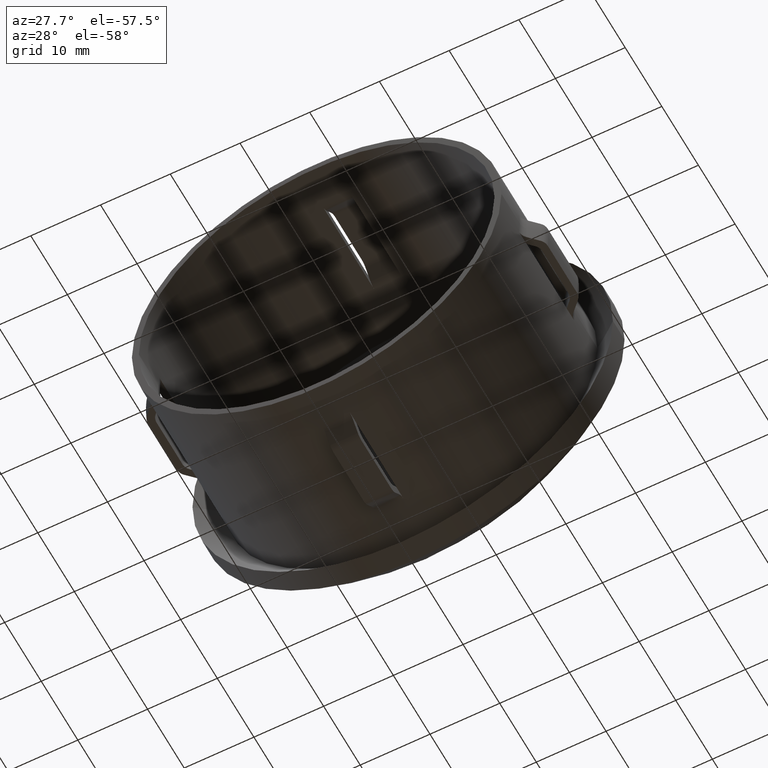
[diagram: clean part render]
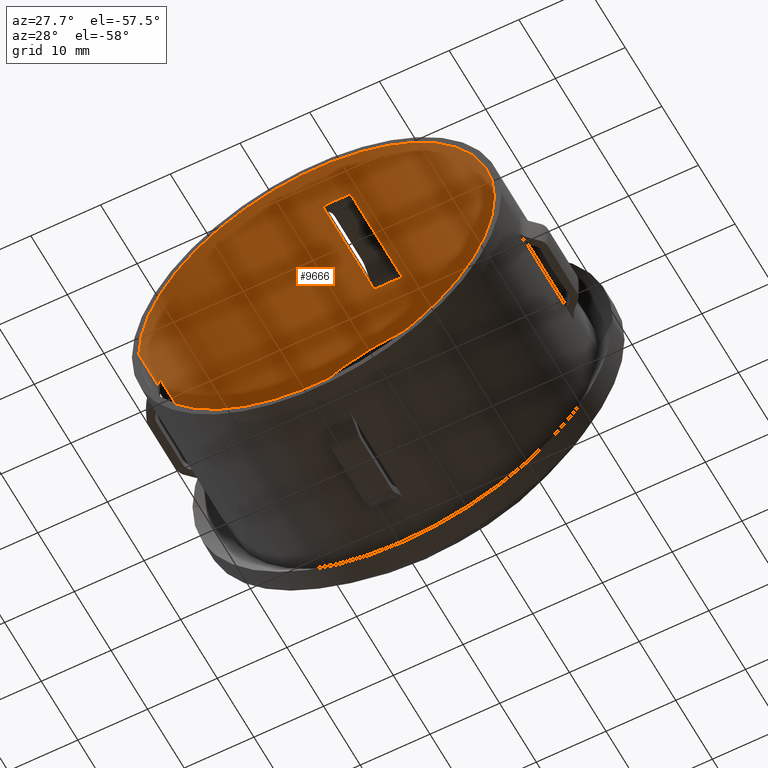
[diagram: same view with one face highlighted and labeled with its STEP entity id]
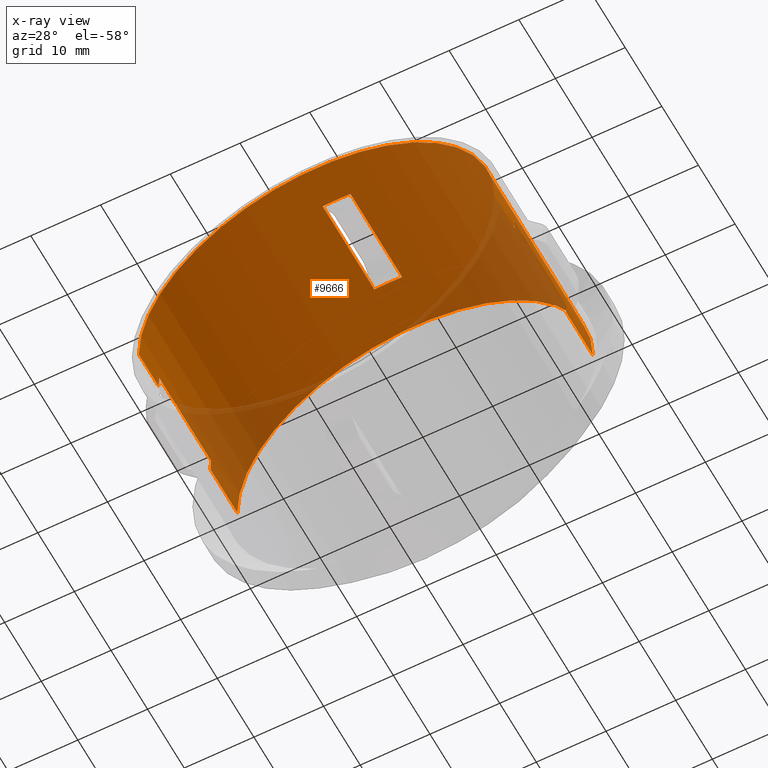
[diagram: x-ray of the same camera — body ghosted, the highlighted face saturated]
A machine part, auxiliary view. The second image highlights one B-rep face of the part: STEP entity #9666.
The next image is the same camera in x-ray: the body ghosted, the highlighted face saturated — about 18% of this face is hidden behind the body in this view.
In plain terms, the highlighted cylindrical surface (partial cylindrical patch) has radius 25.5 mm, axis along (-0, -1, -0).
Its self-contained STEP definition (entity closure, byte-faithful):
#73 = VECTOR ( 'NONE', #10206, 1000.000000000000000 ) ;
#126 = EDGE_CURVE ( 'NONE', #4200, #12732, #2209, .T. ) ;
#174 = ORIENTED_EDGE ( 'NONE', *, *, #1017, .F. ) ;
#220 = VERTEX_POINT ( 'NONE', #2466 ) ;
#235 = DIRECTION ( 'NONE',  ( 1.000000000000000000, -2.721134864277343100E-015, 0.0000000000000000000 ) ) ;
#266 = EDGE_CURVE ( 'NONE', #6447, #12217, #13176, .T. ) ;
#375 = ORIENTED_EDGE ( 'NONE', *, *, #4509, .T. ) ;
#384 = CARTESIAN_POINT ( 'NONE',  ( -25.50000000000014900, 5.428932188134656800, 3.122849337825761700E-015 ) ) ;
#503 = LINE ( 'NONE', #4053, #4245 ) ;
#538 = EDGE_CURVE ( 'NONE', #756, #660, #8624, .T. ) ;
#541 = AXIS2_PLACEMENT_3D ( 'NONE', #11102, #3246, #14513 ) ;
#619 = AXIS2_PLACEMENT_3D ( 'NONE', #2639, #7455, #9138 ) ;
#660 = VERTEX_POINT ( 'NONE', #14687 ) ;
#717 = DIRECTION ( 'NONE',  ( -2.449293598294745400E-017, -1.000000000000000000, 0.0000000000000000000 ) ) ;
#720 = CARTESIAN_POINT ( 'NONE',  ( 25.50000000000002500, 34.29999999999992600, 0.0000000000000000000 ) ) ;
#756 = VERTEX_POINT ( 'NONE', #2252 ) ;
#836 = ORIENTED_EDGE ( 'NONE', *, *, #3179, .F. ) ;
#1017 = EDGE_CURVE ( 'NONE', #5639, #11183, #11599, .T. ) ;
#1028 = CARTESIAN_POINT ( 'NONE',  ( -25.42144763777250600, 5.428932188134619500, 1.999999999999994400 ) ) ;
#1156 = VECTOR ( 'NONE', #717, 1000.000000000000000 ) ;
#1200 = AXIS2_PLACEMENT_3D ( 'NONE', #5533, #13419, #2187 ) ;
#1405 = DIRECTION ( 'NONE',  ( -2.699121545320764300E-015, -1.000000000000000000, -0.0000000000000000000 ) ) ;
#1541 = ORIENTED_EDGE ( 'NONE', *, *, #1866, .F. ) ;
#1866 = EDGE_CURVE ( 'NONE', #5497, #7422, #5760, .T. ) ;
#1919 = EDGE_CURVE ( 'NONE', #13942, #12732, #11411, .T. ) ;
#1998 = CARTESIAN_POINT ( 'NONE',  ( 25.42144763777231700, 5.428932188134520100, 1.999999999999997100 ) ) ;
#2046 = DIRECTION ( 'NONE',  ( -2.449293598294745400E-017, -1.000000000000000000, 0.0000000000000000000 ) ) ;
#2082 = VECTOR ( 'NONE', #12179, 1000.000000000000000 ) ;
#2107 = EDGE_CURVE ( 'NONE', #11183, #4200, #12972, .T. ) ;
#2187 = DIRECTION ( 'NONE',  ( 1.000000000000000000, -2.699121545320764300E-015, 0.0000000000000000000 ) ) ;
#2192 = EDGE_CURVE ( 'NONE', #220, #7157, #10171, .T. ) ;
#2209 = LINE ( 'NONE', #3289, #73 ) ;
#2252 = CARTESIAN_POINT ( 'NONE',  ( 2.000000000000003100, 19.58578643762694700, 25.42144763777240600 ) ) ;
#2401 = DIRECTION ( 'NONE',  ( -2.699121545320764300E-015, -1.000000000000000000, -0.0000000000000000000 ) ) ;
#2466 = CARTESIAN_POINT ( 'NONE',  ( 25.50000000000000000, 19.58578643762691500, 0.0000000000000000000 ) ) ;
#2509 = CIRCLE ( 'NONE', #541, 25.50000000000003600 ) ;
#2639 = CARTESIAN_POINT ( 'NONE',  ( -7.792652116742274300E-014, 5.428932188134588400, 0.0000000000000000000 ) ) ;
#2685 = CARTESIAN_POINT ( 'NONE',  ( -25.49999999999991100, 26.87492981902789400, 0.0000000000000000000 ) ) ;
#2941 = ORIENTED_EDGE ( 'NONE', *, *, #126, .F. ) ;
#3018 = DIRECTION ( 'NONE',  ( 1.000000000000000000, -2.687120678473870100E-015, 0.0000000000000000000 ) ) ;
#3056 = DIRECTION ( 'NONE',  ( -2.699121545320764300E-015, -1.000000000000000000, -0.0000000000000000000 ) ) ;
#3086 = ORIENTED_EDGE ( 'NONE', *, *, #266, .F. ) ;
#3179 = EDGE_CURVE ( 'NONE', #756, #9894, #13135, .T. ) ;
#3246 = DIRECTION ( 'NONE',  ( -2.699121545320764300E-015, -1.000000000000000000, -0.0000000000000000000 ) ) ;
#3289 = CARTESIAN_POINT ( 'NONE',  ( -25.50000000000002500, 34.30000000000006800, 3.122849337825753800E-015 ) ) ;
#3358 = CARTESIAN_POINT ( 'NONE',  ( 25.49999999999999600, 5.428932188134520100, 0.0000000000000000000 ) ) ;
#3564 = LINE ( 'NONE', #6753, #4081 ) ;
#3813 = CARTESIAN_POINT ( 'NONE',  ( 25.49999999999999600, 5.613396333925567000E-016, 0.0000000000000000000 ) ) ;
#3904 = CIRCLE ( 'NONE', #6348, 25.50000000000001400 ) ;
#4030 = CARTESIAN_POINT ( 'NONE',  ( -25.50000000000018100, 1.382165384447520000E-013, 3.122849337825765600E-015 ) ) ;
#4053 = CARTESIAN_POINT ( 'NONE',  ( 25.50000000000002500, 34.29999999999992600, 0.0000000000000000000 ) ) ;
#4081 = VECTOR ( 'NONE', #14657, 1000.000000000000000 ) ;
#4200 = VERTEX_POINT ( 'NONE', #384 ) ;
#4245 = VECTOR ( 'NONE', #3056, 1000.000000000000000 ) ;
#4409 = ORIENTED_EDGE ( 'NONE', *, *, #2192, .T. ) ;
#4500 = CARTESIAN_POINT ( 'NONE',  ( 2.000000000000003100, 20.00000000000000000, 25.42144763777240600 ) ) ;
#4509 = EDGE_CURVE ( 'NONE', #5639, #12217, #2509, .T. ) ;
#4531 = AXIS2_PLACEMENT_3D ( 'NONE', #14443, #13238, #6482 ) ;
#4623 = CIRCLE ( 'NONE', #7037, 25.50000000000007100 ) ;
#4783 = CARTESIAN_POINT ( 'NONE',  ( -7.792652116742274300E-014, 5.428932188134588400, 0.0000000000000000000 ) ) ;
#4881 = ORIENTED_EDGE ( 'NONE', *, *, #1919, .T. ) ;
#4925 = ORIENTED_EDGE ( 'NONE', *, *, #2107, .F. ) ;
#4969 = DIRECTION ( 'NONE',  ( -2.449293598294745400E-017, -1.000000000000000000, 0.0000000000000000000 ) ) ;
#5102 = ORIENTED_EDGE ( 'NONE', *, *, #7644, .T. ) ;
#5121 = CYLINDRICAL_SURFACE ( 'NONE', #11568, 25.50000000000002500 ) ;
#5497 = VERTEX_POINT ( 'NONE', #3358 ) ;
#5533 = CARTESIAN_POINT ( 'NONE',  ( -9.257986900450202300E-014, 6.938893903907228400E-014, 0.0000000000000000000 ) ) ;
#5639 = VERTEX_POINT ( 'NONE', #12826 ) ;
#5760 = CIRCLE ( 'NONE', #14362, 25.50000000000007100 ) ;
#5913 = VECTOR ( 'NONE', #2046, 1000.000000000000000 ) ;
#6230 = ORIENTED_EDGE ( 'NONE', *, *, #13108, .T. ) ;
#6348 = AXIS2_PLACEMENT_3D ( 'NONE', #10104, #2401, #235 ) ;
#6447 = VERTEX_POINT ( 'NONE', #2685 ) ;
#6482 = DIRECTION ( 'NONE',  ( 1.000000000000000000, -2.721134864277340700E-015, 0.0000000000000000000 ) ) ;
#6612 = DIRECTION ( 'NONE',  ( 1.000000000000000000, -2.721134864277340700E-015, 0.0000000000000000000 ) ) ;
#6641 = VECTOR ( 'NONE', #4969, 1000.000000000000000 ) ;
#6752 = ORIENTED_EDGE ( 'NONE', *, *, #8098, .F. ) ;
#6753 = CARTESIAN_POINT ( 'NONE',  ( 25.42144763777231700, 20.00000000000000000, 1.999999999999994400 ) ) ;
#7037 = AXIS2_PLACEMENT_3D ( 'NONE', #12871, #9588, #8551 ) ;
#7157 = VERTEX_POINT ( 'NONE', #12551 ) ;
#7422 = VERTEX_POINT ( 'NONE', #1998 ) ;
#7455 = DIRECTION ( 'NONE',  ( -2.699121545320764300E-015, -1.000000000000000000, -0.0000000000000000000 ) ) ;
#7462 = CARTESIAN_POINT ( 'NONE',  ( -25.42144763777250600, 20.00000000000000000, 1.999999999999994400 ) ) ;
#7591 = ORIENTED_EDGE ( 'NONE', *, *, #8774, .T. ) ;
#7637 = EDGE_LOOP ( 'NONE', ( #3086, #6752, #14101, #4409, #5102, #1541, #7591, #4881, #2941, #4925, #174, #375 ) ) ;
#7644 = EDGE_CURVE ( 'NONE', #7157, #7422, #3564, .T. ) ;
#7747 = AXIS2_PLACEMENT_3D ( 'NONE', #8305, #10218, #6612 ) ;
#8087 = CARTESIAN_POINT ( 'NONE',  ( -25.50000000000002500, 34.30000000000006800, 3.122849337825753800E-015 ) ) ;
#8098 = EDGE_CURVE ( 'NONE', #8659, #6447, #3904, .T. ) ;
#8139 = EDGE_CURVE ( 'NONE', #9894, #12085, #4623, .T. ) ;
#8305 = CARTESIAN_POINT ( 'NONE',  ( -3.971545084865199800E-014, 19.58578643762698600, 0.0000000000000000000 ) ) ;
#8551 = DIRECTION ( 'NONE',  ( 1.000000000000000000, -2.687120678473870100E-015, 0.0000000000000000000 ) ) ;
#8624 = CIRCLE ( 'NONE', #4531, 25.50000000000003600 ) ;
#8659 = VERTEX_POINT ( 'NONE', #14073 ) ;
#8690 = EDGE_CURVE ( 'NONE', #8659, #220, #503, .T. ) ;
#8774 = EDGE_CURVE ( 'NONE', #5497, #13942, #14678, .T. ) ;
#9010 = FACE_BOUND ( 'NONE', #12876, .T. ) ;
#9077 = CARTESIAN_POINT ( 'NONE',  ( 0.0000000000000000000, 34.29999999999999700, 0.0000000000000000000 ) ) ;
#9138 = DIRECTION ( 'NONE',  ( 1.000000000000000000, -2.687120678473870100E-015, 0.0000000000000000000 ) ) ;
#9183 = DIRECTION ( 'NONE',  ( -2.699121545320764300E-015, -1.000000000000000000, -0.0000000000000000000 ) ) ;
#9487 = LINE ( 'NONE', #13852, #6641 ) ;
#9495 = VECTOR ( 'NONE', #1405, 1000.000000000000000 ) ;
#9588 = DIRECTION ( 'NONE',  ( -2.699121545320764300E-015, -1.000000000000000000, -0.0000000000000000000 ) ) ;
#9665 = ORIENTED_EDGE ( 'NONE', *, *, #8139, .F. ) ;
#9666 = ADVANCED_FACE ( 'NONE', ( #14656, #9010 ), #5121, .F. ) ;
#9894 = VERTEX_POINT ( 'NONE', #12043 ) ;
#10104 = CARTESIAN_POINT ( 'NONE',  ( -2.004116690098073400E-014, 26.87492981902782700, 0.0000000000000000000 ) ) ;
#10171 = CIRCLE ( 'NONE', #7747, 25.50000000000003600 ) ;
#10200 = DIRECTION ( 'NONE',  ( -2.699121545320764300E-015, -1.000000000000000000, -0.0000000000000000000 ) ) ;
#10206 = DIRECTION ( 'NONE',  ( -2.699121545320764300E-015, -1.000000000000000000, -0.0000000000000000000 ) ) ;
#10218 = DIRECTION ( 'NONE',  ( -2.699121545320764300E-015, -1.000000000000000000, -0.0000000000000000000 ) ) ;
#10248 = DIRECTION ( 'NONE',  ( 1.000000000000000000, -2.721134864277341900E-015, 0.0000000000000000000 ) ) ;
#10378 = CARTESIAN_POINT ( 'NONE',  ( -25.50000000000007100, 19.58578643762705300, 3.122849337825755300E-015 ) ) ;
#11102 = CARTESIAN_POINT ( 'NONE',  ( -3.971545084865199800E-014, 19.58578643762698600, 0.0000000000000000000 ) ) ;
#11183 = VERTEX_POINT ( 'NONE', #1028 ) ;
#11411 = CIRCLE ( 'NONE', #1200, 25.50000000000008900 ) ;
#11568 = AXIS2_PLACEMENT_3D ( 'NONE', #9077, #10200, #10248 ) ;
#11599 = LINE ( 'NONE', #7462, #1156 ) ;
#12043 = CARTESIAN_POINT ( 'NONE',  ( 1.999999999999941600, 5.428932188134583100, 25.42144763777239500 ) ) ;
#12085 = VERTEX_POINT ( 'NONE', #13380 ) ;
#12179 = DIRECTION ( 'NONE',  ( -2.699121545320764300E-015, -1.000000000000000000, -0.0000000000000000000 ) ) ;
#12217 = VERTEX_POINT ( 'NONE', #10378 ) ;
#12551 = CARTESIAN_POINT ( 'NONE',  ( 25.42144763777232100, 19.58578643762691500, 1.999999999999997300 ) ) ;
#12655 = ORIENTED_EDGE ( 'NONE', *, *, #538, .T. ) ;
#12732 = VERTEX_POINT ( 'NONE', #4030 ) ;
#12826 = CARTESIAN_POINT ( 'NONE',  ( -25.42144763777239500, 19.58578643762705300, 1.999999999999993100 ) ) ;
#12871 = CARTESIAN_POINT ( 'NONE',  ( -7.792652116742274300E-014, 5.428932188134588400, 0.0000000000000000000 ) ) ;
#12876 = EDGE_LOOP ( 'NONE', ( #12655, #6230, #9665, #836 ) ) ;
#12972 = CIRCLE ( 'NONE', #619, 25.50000000000007100 ) ;
#13108 = EDGE_CURVE ( 'NONE', #660, #12085, #9487, .T. ) ;
#13135 = LINE ( 'NONE', #4500, #5913 ) ;
#13176 = LINE ( 'NONE', #8087, #9495 ) ;
#13238 = DIRECTION ( 'NONE',  ( -2.699121545320764300E-015, -1.000000000000000000, -0.0000000000000000000 ) ) ;
#13380 = CARTESIAN_POINT ( 'NONE',  ( -2.000000000000065300, 5.428932188134593800, 25.42144763777239500 ) ) ;
#13419 = DIRECTION ( 'NONE',  ( -2.699121545320764300E-015, -1.000000000000000000, -0.0000000000000000000 ) ) ;
#13852 = CARTESIAN_POINT ( 'NONE',  ( -1.999999999999996700, 20.00000000000000000, 25.42144763777241700 ) ) ;
#13942 = VERTEX_POINT ( 'NONE', #3813 ) ;
#14073 = CARTESIAN_POINT ( 'NONE',  ( 25.49999999999999600, 26.87492981902775600, -3.122849337825737600E-015 ) ) ;
#14101 = ORIENTED_EDGE ( 'NONE', *, *, #8690, .T. ) ;
#14362 = AXIS2_PLACEMENT_3D ( 'NONE', #4783, #9183, #3018 ) ;
#14443 = CARTESIAN_POINT ( 'NONE',  ( -3.971545084865199800E-014, 19.58578643762698600, 0.0000000000000000000 ) ) ;
#14513 = DIRECTION ( 'NONE',  ( 1.000000000000000000, -2.721134864277340700E-015, 0.0000000000000000000 ) ) ;
#14656 = FACE_OUTER_BOUND ( 'NONE', #7637, .T. ) ;
#14657 = DIRECTION ( 'NONE',  ( -2.449293598294745400E-017, -1.000000000000000000, 0.0000000000000000000 ) ) ;
#14678 = LINE ( 'NONE', #720, #2082 ) ;
#14687 = CARTESIAN_POINT ( 'NONE',  ( -1.999999999999996700, 19.58578643762695700, 25.42144763777241700 ) ) ;